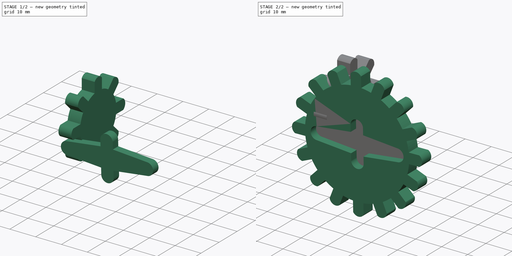
[diagram: build sequence overview — one tinted view per stage of 2, left to right]
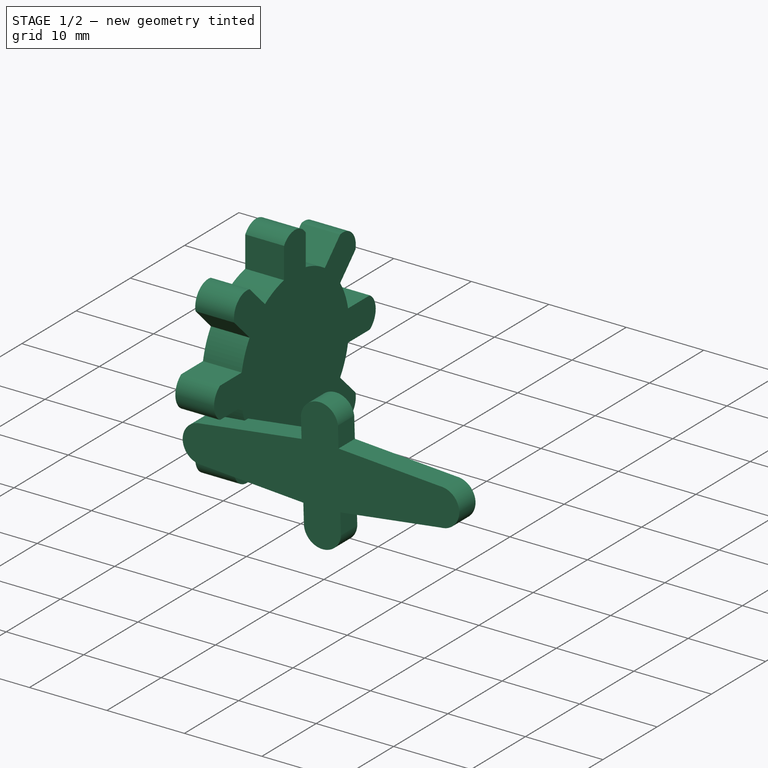
[diagram: stage 1 of 2 — iso view after this stage's code; geometry added in this stage tinted green]
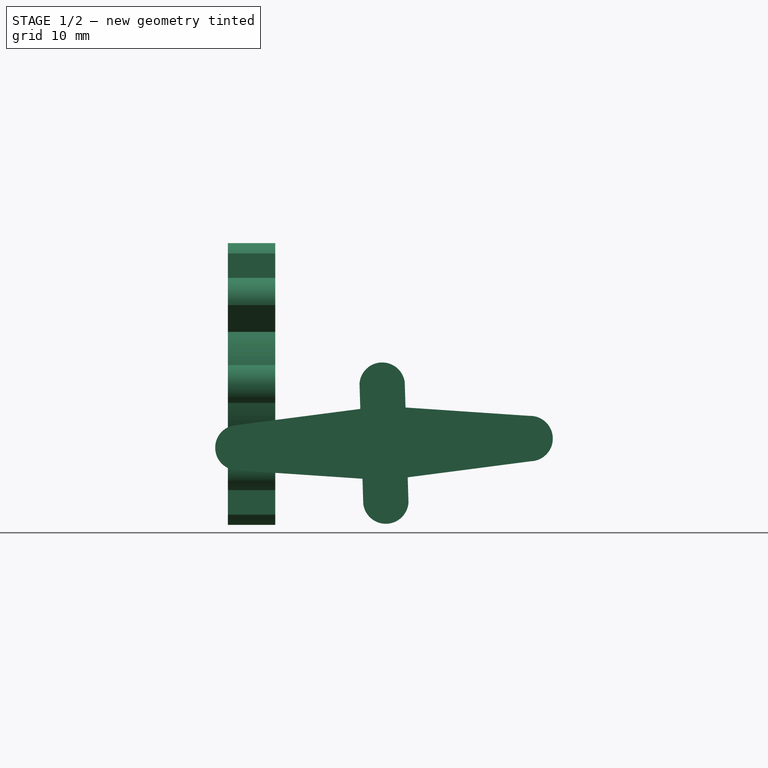
[diagram: stage 1 of 2 — front view after this stage's code; geometry added in this stage tinted green]
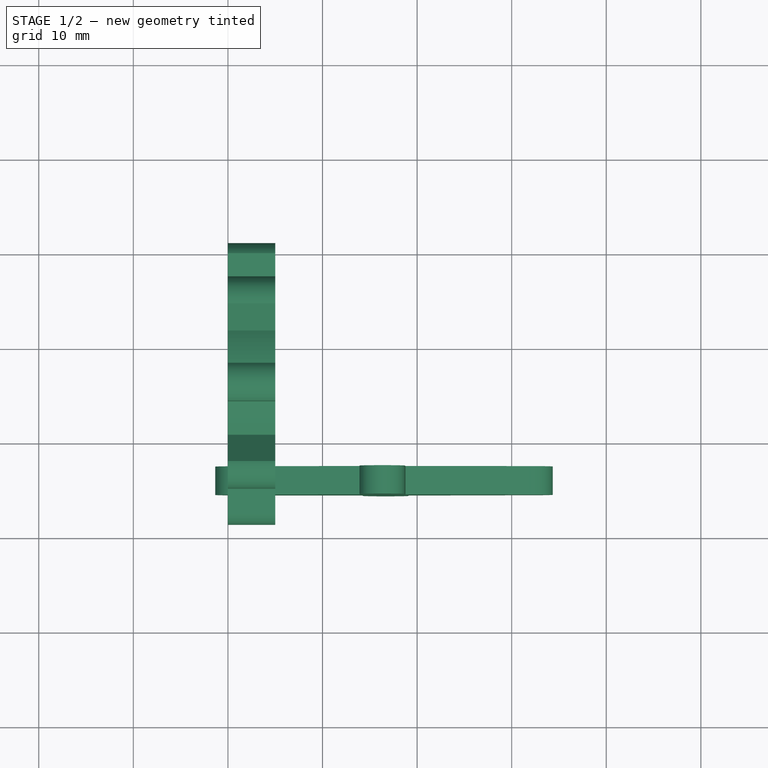
[diagram: stage 1 of 2 — top view after this stage's code; geometry added in this stage tinted green]
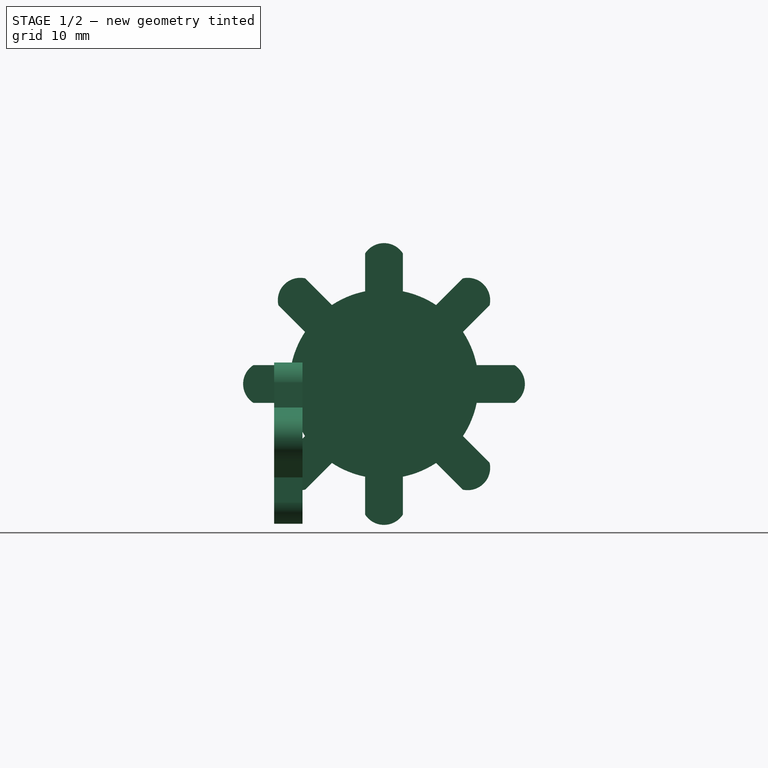
[diagram: stage 1 of 2 — right view after this stage's code; geometry added in this stage tinted green]
FCSTD DOCUMENT  (FreeCAD 0.20R29410 (Git))
Label: gears
License: Creative Commons Attribution-ShareAlike
LicenseURL: http://creativecommons.org/licenses/by-sa/4.0/
objects: Part::Feature×3, Sketcher::SketchObject×3, Part::Extrusion×3, App::Part×1, Part::Cut×1
note: 10 computed .brp shape members not serialized (recipe doc carries the construction recipe); baked Part::Feature solids carry a one-line shape summary decoded from their .brp

FEATURE [Sketcher::SketchObject] Sketch001
  FullyConstrained = false
  MapMode = 5
  Placement = pos=(16.5,34.45,-6.25) rot=(-0.999757,-0.01559,-0.01559;1.57104rad)
  Support = -> [Part__Feature002]
  sketch-geometry (16):
    g0: LineSegment StartX=-2.39133 StartY=6.36221 StartZ=0 EndX=-2.39133 EndY=3.69187 EndZ=0
    g1: LineSegment StartX=-2.39133 StartY=3.69187 StartZ=0 EndX=-15.4752 EndY=2.39873 EndZ=0
    g2: ArcOfCircle CenterX=0 CenterY=6.1269 CenterZ=0 NormalX=0 NormalY=0 NormalZ=1 AngleXU=0 Radius=2.40288 StartAngle=1.5708 EndAngle=3.04351
    g3: ArcOfCircle CenterX=-15.4551 CenterY=0 CenterZ=0 NormalX=0 NormalY=0 NormalZ=1 AngleXU=0 Radius=2.39881 StartAngle=1.57915 EndAngle=3.14159
    g4: LineSegment StartX=2.39133 StartY=6.36221 StartZ=0 EndX=2.39133 EndY=3.69187 EndZ=0
    g5: LineSegment StartX=2.39133 StartY=3.69187 StartZ=0 EndX=15.4752 EndY=2.39873 EndZ=0
    g6: ArcOfCircle CenterX=0 CenterY=6.1269 CenterZ=0 NormalX=0 NormalY=0 NormalZ=1 AngleXU=0 Radius=2.40288 StartAngle=0.0980847 EndAngle=1.5708
    g7: ArcOfCircle CenterX=15.4551 CenterY=0 CenterZ=0 NormalX=0 NormalY=0 NormalZ=1 AngleXU=0 Radius=2.39881 StartAngle=1e-16 EndAngle=1.56244
    g8: LineSegment StartX=-2.39133 StartY=-6.36221 StartZ=0 EndX=-2.39133 EndY=-3.69187 EndZ=0
    g9: LineSegment StartX=-2.39133 StartY=-3.69187 StartZ=0 EndX=-15.4752 EndY=-2.39873 EndZ=0
    g10: ArcOfCircle CenterX=0 CenterY=-6.1269 CenterZ=0 NormalX=0 NormalY=0 NormalZ=1 AngleXU=0 Radius=2.40288 StartAngle=3.23968 EndAngle=4.71239
    g11: ArcOfCircle CenterX=-15.4551 CenterY=0 CenterZ=0 NormalX=0 NormalY=0 NormalZ=1 AngleXU=0 Radius=2.39881 StartAngle=3.14159 EndAngle=4.70403
    g12: LineSegment StartX=2.39133 StartY=-6.36221 StartZ=0 EndX=2.39133 EndY=-3.69187 EndZ=0
    g13: LineSegment StartX=2.39133 StartY=-3.69187 StartZ=0 EndX=15.4752 EndY=-2.39873 EndZ=0
    g14: ArcOfCircle CenterX=0 CenterY=-6.1269 CenterZ=0 NormalX=0 NormalY=0 NormalZ=1 AngleXU=0 Radius=2.40288 StartAngle=4.71239 EndAngle=6.1851
    g15: ArcOfCircle CenterX=15.4551 CenterY=0 CenterZ=0 NormalX=0 NormalY=0 NormalZ=1 AngleXU=0 Radius=2.39881 StartAngle=4.72075 EndAngle=6.28319
  constraints (20):
    c: Vertical(g0)
    c: Coincident(g0,g1)
    c: PointOnObject(g2,g-2)
    c: Coincident(g2,g0)
    c: PointOnObject(g2,g-2)
    c: PointOnObject(g3,g-1)
    c: Coincident(g3,g1)
    c: PointOnObject(g3,g-1)
    c: Vertical(g4)
    c: Coincident(g4,g5)
    c: Coincident(g6,g4)
    c: Coincident(g7,g5)
    c: Vertical(g8)
    c: Coincident(g8,g9)
    c: Coincident(g10,g8)
    c: Coincident(g11,g9)
    c: Vertical(g12)
    c: Coincident(g12,g13)
    c: Coincident(g14,g12)
    c: Coincident(g15,g13)
FEATURE [Part::Extrusion] Extrude001  label="Servo Horn Gap"
  Base = -> Sketch001
  Dir = (0,1,0)
  DirMode = 2
  FaceMakerClass = Part::FaceMakerBullseye
  LengthFwd = 3
  LengthRev = 0
  Solid = true
  Symmetric = false
FEATURE [Sketcher::SketchObject] Sketch003
  FullyConstrained = false
  Placement = pos=(0,0,0) rot=(0.57735,0.57735,0.57735;2.0944rad)
  sketch-geometry (41):
    g0: ArcOfCircle CenterX=46.0709 CenterY=0 CenterZ=0 NormalX=0 NormalY=0 NormalZ=1 AngleXU=0 Radius=10 StartAngle=2.55755 EndAngle=2.94023
    g1: LineSegment StartX=46.0709 StartY=0 StartZ=0 EndX=46.0709 EndY=17.5553 EndZ=0
    g2: LineSegment StartX=46.0709 StartY=0 StartZ=0 EndX=63.8362 EndY=0 EndZ=0
    g3: LineSegment StartX=46.0709 StartY=0 StartZ=0 EndX=46.0709 EndY=-12.8276 EndZ=0
    g4: LineSegment StartX=46.0709 StartY=0 StartZ=0 EndX=32.1152 EndY=0 EndZ=0
    g5: LineSegment StartX=44.0709 StartY=9.79796 StartZ=0 EndX=44.0709 EndY=13.798 EndZ=0
    g6: LineSegment StartX=48.0709 StartY=9.79796 StartZ=0 EndX=48.0709 EndY=13.798 EndZ=0
    g7: ArcOfCircle CenterX=46.0709 CenterY=12.5184 CenterZ=0 NormalX=0 NormalY=0 NormalZ=1 AngleXU=0 Radius=2.37432 StartAngle=0.569172 EndAngle=2.57242
    g8: GeomPoint X=46.0709 Y=14.8927 Z=0
    g9: LineSegment StartX=46.0709 StartY=0 StartZ=0 EndX=58.8048 EndY=-12.734 EndZ=0
    g10: LineSegment StartX=46.0709 StartY=0 StartZ=0 EndX=61.7698 EndY=15.6989 EndZ=0
    g11: LineSegment StartX=51.5849 StartY=8.34242 StartZ=0 EndX=54.4133 EndY=11.1708 EndZ=0
    g12: LineSegment StartX=54.4133 StartY=5.51399 StartZ=0 EndX=57.2417 EndY=8.34242 EndZ=0
    g13: ArcOfCircle CenterX=54.9227 CenterY=8.85181 CenterZ=0 NormalX=0 NormalY=0 NormalZ=1 AngleXU=0 Radius=2.37432 StartAngle=6.06696 EndAngle=8.07021
    g14: GeomPoint X=56.6016 Y=10.5307 Z=0
    g15: LineSegment StartX=54.4133 StartY=-5.51399 StartZ=0 EndX=57.2417 EndY=-8.34242 EndZ=0
    g16: ArcOfCircle CenterX=54.9227 CenterY=-8.85181 CenterZ=0 NormalX=0 NormalY=0 NormalZ=1 AngleXU=0 Radius=2.37432 StartAngle=4.49616 EndAngle=6.49941
    g17: LineSegment StartX=51.5849 StartY=-8.34242 StartZ=0 EndX=54.4133 EndY=-11.1708 EndZ=0
    g18: LineSegment StartX=48.0709 StartY=-9.79796 StartZ=0 EndX=48.0709 EndY=-13.798 EndZ=0
    g19: ArcOfCircle CenterX=46.0709 CenterY=-12.5184 CenterZ=0 NormalX=0 NormalY=0 NormalZ=1 AngleXU=0 Radius=2.37432 StartAngle=3.71076 EndAngle=5.71401
    g20: LineSegment StartX=44.0709 StartY=-9.79796 StartZ=0 EndX=44.0709 EndY=-13.798 EndZ=0
    g21: LineSegment StartX=55.8689 StartY=2 StartZ=0 EndX=59.8689 EndY=2 EndZ=0
    g22: ArcOfCircle CenterX=58.5892 CenterY=0 CenterZ=0 NormalX=0 NormalY=0 NormalZ=1 AngleXU=0 Radius=2.37432 StartAngle=5.28156 EndAngle=7.28481
    g23: LineSegment StartX=55.8689 StartY=-2 StartZ=0 EndX=59.8689 EndY=-2 EndZ=0
    g24: LineSegment StartX=40.5569 StartY=8.34242 StartZ=0 EndX=37.7285 EndY=11.1708 EndZ=0
    g25: LineSegment StartX=37.7285 StartY=5.51399 StartZ=0 EndX=34.9 EndY=8.34242 EndZ=0
    g26: ArcOfCircle CenterX=37.2191 CenterY=8.85181 CenterZ=0 NormalX=0 NormalY=0 NormalZ=1 AngleXU=0 Radius=2.37432 StartAngle=1.35457 EndAngle=3.35782
    g27: GeomPoint X=35.5402 Y=10.5307 Z=0
    g28: LineSegment StartX=37.7285 StartY=-5.51399 StartZ=0 EndX=34.9 EndY=-8.34242 EndZ=0
    g29: ArcOfCircle CenterX=37.2191 CenterY=-8.85181 CenterZ=0 NormalX=0 NormalY=0 NormalZ=1 AngleXU=0 Radius=2.37432 StartAngle=2.92537 EndAngle=4.92861
    g30: LineSegment StartX=40.5569 StartY=-8.34242 StartZ=0 EndX=37.7285 EndY=-11.1708 EndZ=0
    g31: LineSegment StartX=36.2729 StartY=2 StartZ=0 EndX=32.2729 EndY=2 EndZ=0
    g32: ArcOfCircle CenterX=33.5525 CenterY=0 CenterZ=0 NormalX=0 NormalY=0 NormalZ=1 AngleXU=0 Radius=2.37432 StartAngle=2.13997 EndAngle=4.14322
    g33: LineSegment StartX=36.2729 StartY=-2 StartZ=0 EndX=32.2729 EndY=-2 EndZ=0
    g34: ArcOfCircle CenterX=46.0709 CenterY=0 CenterZ=0 NormalX=0 NormalY=0 NormalZ=1 AngleXU=0 Radius=10 StartAngle=3.34295 EndAngle=3.72563
    g35: ArcOfCircle CenterX=46.0709 CenterY=0 CenterZ=0 NormalX=0 NormalY=0 NormalZ=1 AngleXU=0 Radius=10 StartAngle=4.12835 EndAngle=4.51103
    g36: ArcOfCircle CenterX=46.0709 CenterY=0 CenterZ=0 NormalX=0 NormalY=0 NormalZ=1 AngleXU=0 Radius=10 StartAngle=4.91375 EndAngle=5.29643
    g37: ArcOfCircle CenterX=46.0709 CenterY=0 CenterZ=0 NormalX=0 NormalY=0 NormalZ=1 AngleXU=0 Radius=10 StartAngle=5.69915 EndAngle=6.08183
    g38: ArcOfCircle CenterX=46.0709 CenterY=0 CenterZ=0 NormalX=0 NormalY=0 NormalZ=1 AngleXU=0 Radius=10 StartAngle=0.201358 EndAngle=0.58404
    g39: ArcOfCircle CenterX=46.0709 CenterY=0 CenterZ=0 NormalX=0 NormalY=0 NormalZ=1 AngleXU=0 Radius=10 StartAngle=0.986756 EndAngle=1.36944
    g40: ArcOfCircle CenterX=46.0709 CenterY=0 CenterZ=0 NormalX=0 NormalY=0 NormalZ=1 AngleXU=0 Radius=10 StartAngle=1.77215 EndAngle=2.15484
  constraints (96):
    c: PointOnObject(g0,g-1)
    c: Diameter(g0) = 20
    c: Coincident(g1,g0)
    c: Vertical(g1)
    c: Coincident(g2,g0)
    c: PointOnObject(g2,g-1)
    c: Coincident(g3,g0)
    c: Vertical(g3)
    c: Coincident(g4,g0)
    c: PointOnObject(g4,g-1)
    c: PointOnObject(g5,g0)
    c: Parallel(g5,g1)
    c: Distance(g5,g1) = 2
    c: Distance(g5) = 4
    c: Distance(g6) = 4
    c: PointOnObject(g7,g1)
    c: Coincident(g7,g5)
    c: Coincident(g7,g6)
    c: PointOnObject(g8,g1)
    c: PointOnObject(g8,g7)
    c: Distance(g8,g5) = 2.28
    c: Parallel(g6,g1)
    c: Distance(g6,g1) = 2
    c: Coincident(g9,g0)
    c: Angle(g9,g2) = 0.785398
    c: Coincident(g10,g0)
    c: Angle(g10,g1) = 0.785398
    c: PointOnObject(g11,g0)
    c: Parallel(g10,g11)
    c: Distance(g11,g10) = 2
    c: Distance(g11) = 4
    c: Distance(g12) = 4
    c: PointOnObject(g12,g0)
    c: PointOnObject(g13,g10)
    c: Coincident(g13,g12)
    c: Coincident(g13,g11)
    c: Distance(g12,g10) = 2
    c: PointOnObject(g14,g10)
    c: PointOnObject(g14,g13)
    c: Distance(g11,g14) = 2.28
    c: Distance(g20) = 4
    c: Distance(g18) = 4
    c: Coincident(g19,g20)
    c: Coincident(g19,g18)
    c: Distance(g17) = 4
    c: Distance(g15) = 4
    c: Coincident(g16,g15)
    c: Coincident(g16,g17)
    c: Distance(g23) = 4
    c: Distance(g21) = 4
    c: Coincident(g22,g23)
    c: Coincident(g22,g21)
    c: Distance(g24) = 4
    c: Distance(g25) = 4
    c: Coincident(g26,g25)
    c: Coincident(g26,g24)
    c: PointOnObject(g27,g26)
    c: Distance(g24,g27) = 2.28
    c: Distance(g30) = 4
    c: Distance(g28) = 4
    c: Coincident(g29,g28)
    c: Coincident(g29,g30)
    c: Distance(g33) = 4
    c: Distance(g31) = 4
    c: Coincident(g32,g33)
    c: Coincident(g32,g31)
    c: Coincident(g40,g24)
    c: Coincident(g0,g25)
    c: Equal(g0,g34)
    c: PointOnObject(g0,g31)
    c: Coincident(g0,g34)
    c: PointOnObject(g34,g33)
    c: Equal(g34,g35)
    c: PointOnObject(g34,g28)
    c: PointOnObject(g35,g30)
    c: Coincident(g34,g35)
    c: Equal(g35,g36)
    c: PointOnObject(g35,g20)
    c: Coincident(g35,g36)
    c: PointOnObject(g36,g18)
    c: Equal(g36,g37)
    c: PointOnObject(g36,g17)
    c: Coincident(g36,g37)
    c: PointOnObject(g37,g15)
    c: Equal(g37,g38)
    c: PointOnObject(g37,g23)
    c: Coincident(g37,g38)
    c: PointOnObject(g38,g21)
    c: Equal(g38,g39)
    c: PointOnObject(g38,g12)
    c: Coincident(g38,g39)
    c: PointOnObject(g39,g11)
    c: Equal(g39,g40)
    c: PointOnObject(g39,g6)
    c: Coincident(g39,g40)
    c: PointOnObject(g40,g5)
FEATURE [Part::Extrusion] Extrude002  label="Weapon Gear"
  Base = -> Sketch003
  Dir = (1,0,0)
  DirMode = 2
  FaceMakerClass = Part::FaceMakerBullseye
  LengthFwd = 5
  LengthRev = 0
  Solid = true
  Symmetric = false
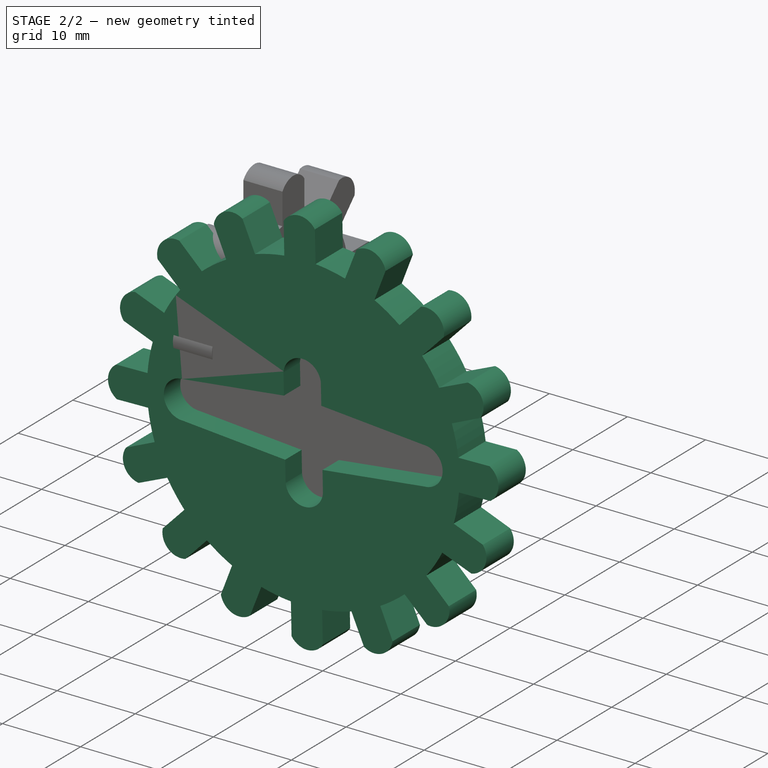
[diagram: stage 2 of 2 — iso view after this stage's code; geometry added in this stage tinted green]
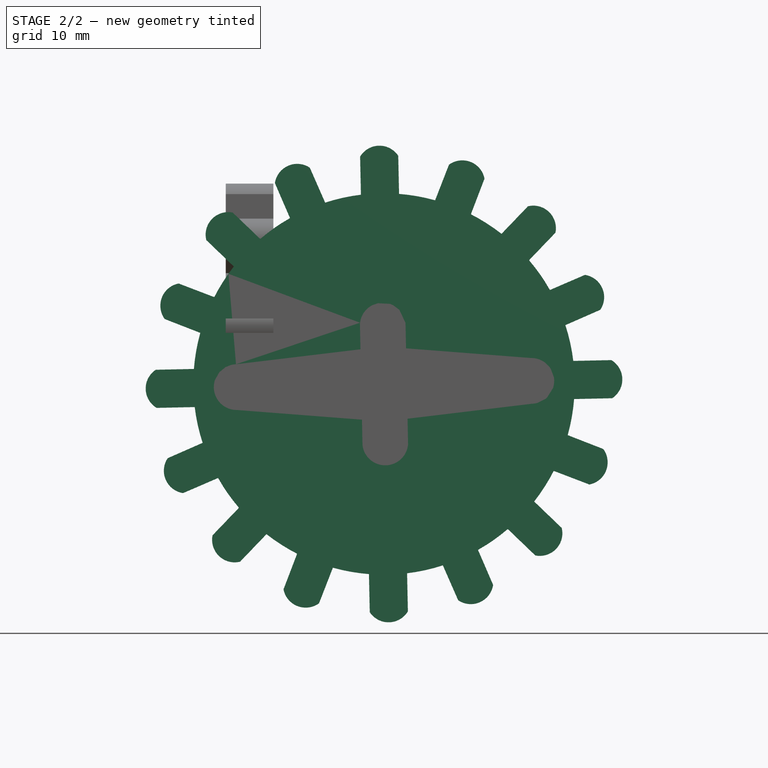
[diagram: stage 2 of 2 — front view after this stage's code; geometry added in this stage tinted green]
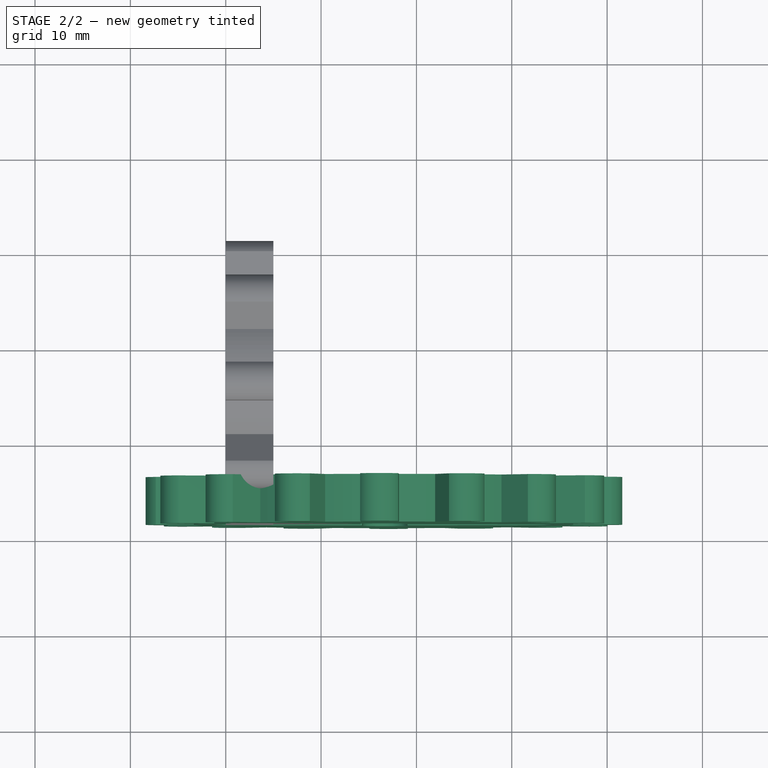
[diagram: stage 2 of 2 — top view after this stage's code; geometry added in this stage tinted green]
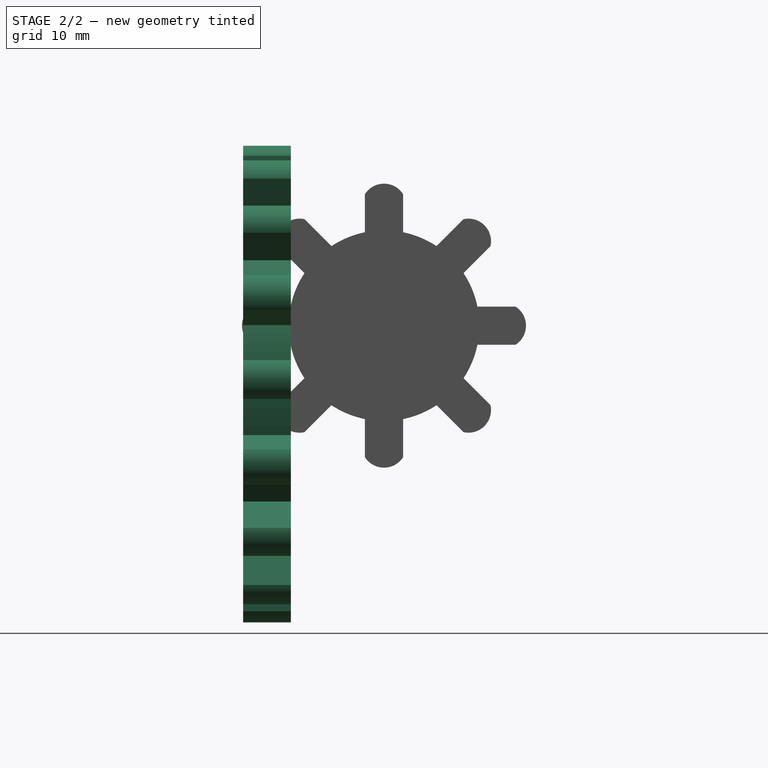
[diagram: stage 2 of 2 — right view after this stage's code; geometry added in this stage tinted green]
FEATURE [Part::Feature] Part__Feature  label="MG90servo_body"
  shape: bbox 32.05 x 28.5 x 13.53 mm, 90 faces (baked)
FEATURE [Part::Feature] Part__Feature001  label="MG90servo_shaft"
  Placement = pos=(16.5,28.5,-6.25) rot=(0,-1,0;0.664889rad)
  shape: bbox 5 x 4.3 x 5 mm, 110 faces (baked)
FEATURE [Part::Feature] Part__Feature002  label="MG90servo_gear"
  Placement = pos=(16.5,34.45,-6.25) rot=(0.999878,0,0.015592;3.14159rad)
  shape: bbox 34.99 x 4.85 x 16.29 mm, 61 faces (baked)
FEATURE [App::Part] MG90servo_assembly
  Group = -> [Part__Feature,Part__Feature001,Part__Feature002]
  Origin = -> Origin
FEATURE [Sketcher::SketchObject] Sketch
  FullyConstrained = false
  MapMode = 5
  Placement = pos=(16.5,34.45,-6.25) rot=(-0.999757,-0.01559,-0.01559;1.57104rad)
  Support = -> [Part__Feature002]
  sketch-geometry (81):
    g0: ArcOfCircle CenterX=0 CenterY=0 CenterZ=0 NormalX=0 NormalY=0 NormalZ=1 AngleXU=0 Radius=20 StartAngle=4.41986 EndAngle=4.61222
    g1: LineSegment StartX=0 StartY=0 StartZ=0 EndX=0 EndY=25 EndZ=0
    g2: LineSegment StartX=0 StartY=0 StartZ=0 EndX=25 EndY=0 EndZ=0
    g3: LineSegment StartX=0 StartY=0 StartZ=0 EndX=0 EndY=-25 EndZ=0
    g4: LineSegment StartX=0 StartY=0 StartZ=0 EndX=-25 EndY=0 EndZ=0
    g5: LineSegment StartX=0 StartY=0 StartZ=0 EndX=17.6777 EndY=17.6777 EndZ=0
    g6: LineSegment StartX=0 StartY=0 StartZ=0 EndX=9.56709 EndY=23.097 EndZ=0
    g7: LineSegment StartX=0 StartY=0 StartZ=0 EndX=-17.6777 EndY=17.6777 EndZ=0
    g8: LineSegment StartX=0 StartY=0 StartZ=0 EndX=-9.56709 EndY=23.097 EndZ=0
    g9: LineSegment StartX=0 StartY=0 StartZ=0 EndX=-9.5662 EndY=-23.0974 EndZ=0
    g10: LineSegment StartX=0 StartY=0 StartZ=0 EndX=-17.677 EndY=-17.6783 EndZ=0
    g11: LineSegment StartX=0 StartY=0 StartZ=0 EndX=17.6777 EndY=-17.6777 EndZ=0
    g12: LineSegment StartX=0 StartY=0 StartZ=0 EndX=9.56709 EndY=-23.097 EndZ=0
    g13: LineSegment StartX=0 StartY=0 StartZ=0 EndX=23.097 EndY=-9.56709 EndZ=0
    g14: LineSegment StartX=0 StartY=0 StartZ=0 EndX=23.097 EndY=9.56709 EndZ=0
    g15: LineSegment StartX=0 StartY=0 StartZ=0 EndX=-23.097 EndY=9.56709 EndZ=0
    g16: LineSegment StartX=0 StartY=0 StartZ=0 EndX=-23.0966 EndY=-9.56797 EndZ=0
    g17: LineSegment StartX=-2 StartY=19.8997 StartZ=0 EndX=-2 EndY=23.8997 EndZ=0
    g18: ArcOfCircle CenterX=0 CenterY=22.6321 CenterZ=0 NormalX=0 NormalY=0 NormalZ=1 AngleXU=0 Radius=2.36789 StartAngle=0.564917 EndAngle=2.57668
    g19: LineSegment StartX=2 StartY=19.8997 StartZ=0 EndX=2 EndY=23.8997 EndZ=0
    g20: LineSegment StartX=12.657 StartY=15.4855 StartZ=0 EndX=15.4855 EndY=18.3139 EndZ=0
    g21: ArcOfCircle CenterX=16.0033 CenterY=16.0033 CenterZ=0 NormalX=0 NormalY=0 NormalZ=1 AngleXU=0 Radius=2.36789 StartAngle=6.0627 EndAngle=8.07446
    g22: LineSegment StartX=15.4855 StartY=12.657 StartZ=0 EndX=18.3139 EndY=15.4855 EndZ=0
    g23: LineSegment StartX=0 StartY=0 StartZ=0 EndX=23.097 EndY=-9.56709 EndZ=0
    g24: LineSegment StartX=19.8997 StartY=-2 StartZ=0 EndX=23.8997 EndY=-2 EndZ=0
    g25: ArcOfCircle CenterX=22.6321 CenterY=3.6e-15 CenterZ=0 NormalX=0 NormalY=0 NormalZ=1 AngleXU=0 Radius=2.36789 StartAngle=5.27731 EndAngle=7.28906
    g26: LineSegment StartX=19.8997 StartY=2 StartZ=0 EndX=23.8997 EndY=2 EndZ=0
    g27: LineSegment StartX=15.4855 StartY=-12.657 StartZ=0 EndX=18.3139 EndY=-15.4855 EndZ=0
    g28: ArcOfCircle CenterX=16.0033 CenterY=-16.0033 CenterZ=0 NormalX=0 NormalY=0 NormalZ=1 AngleXU=0 Radius=2.36789 StartAngle=4.49191 EndAngle=6.50367
    g29: LineSegment StartX=12.657 StartY=-15.4855 StartZ=0 EndX=15.4855 EndY=-18.3139 EndZ=0
    g30: LineSegment StartX=2 StartY=-19.8997 StartZ=0 EndX=2 EndY=-23.8997 EndZ=0
    g31: ArcOfCircle CenterX=1.12305e-10 CenterY=-22.6321 CenterZ=0 NormalX=0 NormalY=0 NormalZ=1 AngleXU=0 Radius=2.36789 StartAngle=3.70651 EndAngle=5.71827
    g32: LineSegment StartX=-2 StartY=-19.8997 StartZ=0 EndX=-2 EndY=-23.8997 EndZ=0
    g33: LineSegment StartX=-15.4856 StartY=-12.6569 StartZ=0 EndX=-18.314 EndY=-15.4853 EndZ=0
    g34: ArcOfCircle CenterX=-16.0034 CenterY=-16.0032 CenterZ=0 NormalX=0 NormalY=0 NormalZ=1 AngleXU=0 Radius=2.36789 StartAngle=2.9211 EndAngle=4.93286
    g35: LineSegment StartX=-12.6572 StartY=-15.4854 StartZ=0 EndX=-15.4856 EndY=-18.3138 EndZ=0
    g36: LineSegment StartX=-19.8997 StartY=2 StartZ=0 EndX=-23.8997 EndY=2 EndZ=0
    g37: ArcOfCircle CenterX=-22.6321 CenterY=-1.12298e-10 CenterZ=0 NormalX=0 NormalY=0 NormalZ=1 AngleXU=0 Radius=2.36789 StartAngle=2.13571 EndAngle=4.14747
    g38: LineSegment StartX=-19.8997 StartY=-2 StartZ=0 EndX=-23.8997 EndY=-2 EndZ=0
    g39: LineSegment StartX=-12.657 StartY=15.4855 StartZ=0 EndX=-15.4855 EndY=18.3139 EndZ=0
    g40: ArcOfCircle CenterX=-16.0033 CenterY=16.0033 CenterZ=0 NormalX=0 NormalY=0 NormalZ=1 AngleXU=0 Radius=2.36789 StartAngle=1.35032 EndAngle=3.36207
    g41: LineSegment StartX=-15.4855 StartY=12.657 StartZ=0 EndX=-18.3139 EndY=15.4855 EndZ=0
    g42: LineSegment StartX=5.76755 StartY=19.1503 StartZ=0 EndX=7.29828 EndY=22.8459 EndZ=0
    g43: LineSegment StartX=9.48739 StartY=17.6065 StartZ=0 EndX=10.9944 EndY=21.3118 EndZ=0
    g44: ArcOfCircle CenterX=8.66093 CenterY=20.9093 CenterZ=0 NormalX=0 NormalY=0 NormalZ=1 AngleXU=0 Radius=2.36789 StartAngle=0.170787 EndAngle=2.18398
    g45: LineSegment StartX=17.6065 StartY=9.48739 StartZ=0 EndX=21.3118 EndY=10.9944 EndZ=0
    g46: ArcOfCircle CenterX=20.9093 CenterY=8.66093 CenterZ=0 NormalX=0 NormalY=0 NormalZ=1 AngleXU=0 Radius=2.36789 StartAngle=5.67001 EndAngle=7.68319
    g47: LineSegment StartX=19.1503 StartY=5.76755 StartZ=0 EndX=22.8459 EndY=7.29828 EndZ=0
    g48: LineSegment StartX=19.1503 StartY=-5.76755 StartZ=0 EndX=22.8459 EndY=-7.29828 EndZ=0
    g49: ArcOfCircle CenterX=20.9093 CenterY=-8.66093 CenterZ=0 NormalX=0 NormalY=0 NormalZ=1 AngleXU=0 Radius=2.36789 StartAngle=4.88318 EndAngle=6.89637
    g50: LineSegment StartX=17.6065 StartY=-9.48739 StartZ=0 EndX=21.3118 EndY=-10.9944 EndZ=0
    g51: LineSegment StartX=5.76755 StartY=-19.1503 StartZ=0 EndX=7.29828 EndY=-22.8459 EndZ=0
    g52: LineSegment StartX=9.48739 StartY=-17.6065 StartZ=0 EndX=10.9944 EndY=-21.3118 EndZ=0
    g53: ArcOfCircle CenterX=8.66093 CenterY=-20.9093 CenterZ=0 NormalX=0 NormalY=0 NormalZ=1 AngleXU=0 Radius=2.36789 StartAngle=4.09921 EndAngle=6.1124
    g54: LineSegment StartX=-9.48739 StartY=-17.6065 StartZ=0 EndX=-10.9944 EndY=-21.3118 EndZ=0
    g55: LineSegment StartX=-5.76755 StartY=-19.1503 StartZ=0 EndX=-7.29828 EndY=-22.8459 EndZ=0
    g56: ArcOfCircle CenterX=-8.66093 CenterY=-20.9093 CenterZ=0 NormalX=0 NormalY=0 NormalZ=1 AngleXU=0 Radius=2.36789 StartAngle=3.31238 EndAngle=5.32557
    g57: LineSegment StartX=-19.1499 StartY=-5.76902 StartZ=0 EndX=-22.8453 EndY=-7.30003 EndZ=0
    g58: ArcOfCircle CenterX=-20.9087 CenterY=-8.66254 CenterZ=0 NormalX=0 NormalY=0 NormalZ=1 AngleXU=0 Radius=2.36789 StartAngle=2.52849 EndAngle=4.54168
    g59: LineSegment StartX=-17.6058 StartY=-9.48874 StartZ=0 EndX=-21.3109 EndY=-10.996 EndZ=0
    g60: LineSegment StartX=-17.6058 StartY=9.48874 StartZ=0 EndX=-21.3109 EndY=10.996 EndZ=0
    g61: ArcOfCircle CenterX=-20.9087 CenterY=8.66254 CenterZ=0 NormalX=0 NormalY=0 NormalZ=1 AngleXU=0 Radius=2.36789 StartAngle=1.74151 EndAngle=3.7547
    g62: LineSegment StartX=-19.1499 StartY=5.76902 StartZ=0 EndX=-22.8453 EndY=7.30003 EndZ=0
    g63: LineSegment StartX=-5.76902 StartY=19.1499 StartZ=0 EndX=-7.30003 EndY=22.8453 EndZ=0
    g64: ArcOfCircle CenterX=-8.66254 CenterY=20.9087 CenterZ=0 NormalX=0 NormalY=0 NormalZ=1 AngleXU=0 Radius=2.36789 StartAngle=0.957693 EndAngle=2.97088
    g65: LineSegment StartX=-9.48874 StartY=17.6058 StartZ=0 EndX=-10.996 EndY=21.3109 EndZ=0
    g66: ArcOfCircle CenterX=0 CenterY=0 CenterZ=0 NormalX=0 NormalY=0 NormalZ=1 AngleXU=0 Radius=20 StartAngle=4.02715 EndAngle=4.21814
    g67: ArcOfCircle CenterX=0 CenterY=0 CenterZ=0 NormalX=0 NormalY=0 NormalZ=1 AngleXU=0 Radius=20 StartAngle=3.63592 EndAngle=3.82682
    g68: ArcOfCircle CenterX=0 CenterY=0 CenterZ=0 NormalX=0 NormalY=0 NormalZ=1 AngleXU=0 Radius=20 StartAngle=3.24176 EndAngle=3.4342
    g69: ArcOfCircle CenterX=0 CenterY=0 CenterZ=0 NormalX=0 NormalY=0 NormalZ=1 AngleXU=0 Radius=20 StartAngle=2.84898 EndAngle=3.04143
    g70: ArcOfCircle CenterX=0 CenterY=0 CenterZ=0 NormalX=0 NormalY=0 NormalZ=1 AngleXU=0 Radius=20 StartAngle=2.45636 EndAngle=2.64727
    g71: ArcOfCircle CenterX=0 CenterY=0 CenterZ=0 NormalX=0 NormalY=0 NormalZ=1 AngleXU=0 Radius=20 StartAngle=2.06512 EndAngle=2.25603
    g72: ArcOfCircle CenterX=0 CenterY=0 CenterZ=0 NormalX=0 NormalY=0 NormalZ=1 AngleXU=0 Radius=20 StartAngle=1.67096 EndAngle=1.8634
    g73: ArcOfCircle CenterX=0 CenterY=0 CenterZ=0 NormalX=0 NormalY=0 NormalZ=1 AngleXU=0 Radius=20 StartAngle=1.27826 EndAngle=1.47063
    g74: ArcOfCircle CenterX=0 CenterY=0 CenterZ=0 NormalX=0 NormalY=0 NormalZ=1 AngleXU=0 Radius=20 StartAngle=0.885566 EndAngle=1.07655
    g75: ArcOfCircle CenterX=0 CenterY=0 CenterZ=0 NormalX=0 NormalY=0 NormalZ=1 AngleXU=0 Radius=20 StartAngle=0.494248 EndAngle=0.685231
    g76: ArcOfCircle CenterX=0 CenterY=0 CenterZ=0 NormalX=0 NormalY=0 NormalZ=1 AngleXU=0 Radius=20 StartAngle=0.100167 EndAngle=0.292532
    g77: ArcOfCircle CenterX=0 CenterY=0 CenterZ=0 NormalX=0 NormalY=0 NormalZ=1 AngleXU=0 Radius=20 StartAngle=5.99065 EndAngle=6.18302
    g78: ArcOfCircle CenterX=0 CenterY=0 CenterZ=0 NormalX=0 NormalY=0 NormalZ=1 AngleXU=0 Radius=20 StartAngle=5.59795 EndAngle=5.78894
    g79: ArcOfCircle CenterX=0 CenterY=0 CenterZ=0 NormalX=0 NormalY=0 NormalZ=1 AngleXU=0 Radius=20 StartAngle=5.20664 EndAngle=5.39762
    g80: ArcOfCircle CenterX=0 CenterY=0 CenterZ=0 NormalX=0 NormalY=0 NormalZ=1 AngleXU=0 Radius=20 StartAngle=4.81256 EndAngle=5.00492
  constraints (184):
    c: Coincident(g0,g-1)
    c: Diameter(g0) = 40
    c: Coincident(g1,g0)
    c: PointOnObject(g1,g-2)
    c: Distance(g1) = 25
    c: Coincident(g2,g0)
    c: PointOnObject(g2,g-1)
    c: Coincident(g3,g0)
    c: PointOnObject(g3,g-2)
    c: Coincident(g4,g0)
    c: PointOnObject(g4,g-1)
    c: Equal(g4,g2)
    c: Equal(g2,g3)
    c: Equal(g3,g1)
    c: Coincident(g5,g0)
    c: Angle(g5,g1) = 0.785398
    c: Coincident(g6,g0)
    c: Angle(g5,g6) = 0.392699
    c: Angle(g7,g8) = -0.392699
    c: Angle(g10,g9) = 0.392699
    c: Angle(g11,g12) = -0.392699
    c: Equal(g1,g6)
    c: Equal(g6,g5)
    c: Equal(g5,g14)
    c: Equal(g14,g13)
    c: Equal(g13,g11)
    c: Equal(g11,g12)
    c: Equal(g12,g9)
    c: Equal(g9,g10)
    c: Equal(g10,g16)
    c: Coincident(g0,g16)
    c: Coincident(g9,g0)
    c: Coincident(g12,g0)
    c: Coincident(g14,g0)
    c: Coincident(g13,g0)
    c: Coincident(g11,g0)
    c: Coincident(g10,g0)
    c: Equal(g16,g15)
    c: Coincident(g15,g0)
    c: Equal(g15,g7)
    c: Coincident(g7,g0)
    c: Equal(g7,g8)
    c: Coincident(g8,g0)
    c: Vertical(g17)
    c: PointOnObject(g18,g1)
    c: Coincident(g18,g17)
    c: Distance(g18,g17) = 2
    c: Vertical(g19)
    c: Coincident(g19,g18)
    c: DistanceY(g17,g17) = 4
    c: Equal(g19,g17)
    c: Angle(g14,g5) = 0.392699
    c: Angle(g13,g2) = 0.392699
    c: Angle(g16,g10) = 0.392699
    c: Angle(g15,g4) = 0.392699
    c: PointOnObject(g1,g18)
    c: Coincident(g21,g22)
    c: Distance(g21,g22) = 2
    c: Coincident(g20,g21)
    c: Equal(g20,g22)
    c: Coincident(g25,g26)
    c: Distance(g25,g26) = 2
    c: Coincident(g24,g25)
    c: Equal(g24,g26)
    c: Coincident(g28,g29)
    c: Distance(g28,g29) = 2
    c: Coincident(g27,g28)
    c: Equal(g27,g29)
    c: Angle(g11,g13) = 0.392699
    c: Coincident(g31,g32)
    c: Distance(g31,g32) = 2
    c: Coincident(g30,g31)
    c: Equal(g30,g32)
    c: Coincident(g34,g35)
    c: Distance(g34,g35) = 2
    c: Coincident(g33,g34)
    c: Equal(g33,g35)
    c: Coincident(g37,g36)
    c: Distance(g37,g36) = 2
    c: Coincident(g38,g37)
    c: Equal(g38,g36)
    c: Coincident(g40,g41)
    c: Distance(g40,g41) = 2
    c: Coincident(g39,g40)
    c: Equal(g39,g41)
    c: Angle(g7,g15) = 0.392699
    c: Parallel(g42,g6)
    c: Distance(g42,g6) = 2
    c: Coincident(g44,g42)
    c: Coincident(g44,g43)
    c: PointOnObject(g44,g6)
    c: PointOnObject(g6,g44)
    c: Distance(g42) = 4
    c: Distance(g43) = 4
    c: Coincident(g46,g47)
    c: Coincident(g46,g45)
    c: Distance(g47) = 4
    c: Distance(g45) = 4
    c: Coincident(g49,g48)
    c: Coincident(g49,g50)
    c: Distance(g48) = 4
    c: Distance(g50) = 4
    c: Coincident(g53,g51)
    c: Coincident(g53,g52)
    c: Distance(g51) = 4
    c: Distance(g52) = 4
    c: Coincident(g56,g55)
    c: Coincident(g56,g54)
    c: Distance(g55) = 4
    c: Distance(g54) = 4
    c: Coincident(g58,g57)
    c: Coincident(g58,g59)
    c: Distance(g57) = 4
    c: Distance(g59) = 4
    c: Coincident(g61,g62)
    c: Coincident(g61,g60)
    c: Distance(g62) = 4
    c: Distance(g60) = 4
    c: Coincident(g64,g63)
    c: Coincident(g64,g65)
    c: Distance(g63) = 4
    c: Distance(g65) = 4
    c: Coincident(g0,g55)
    c: PointOnObject(g66,g54)
    c: Equal(g0,g66)
    c: PointOnObject(g66,g35)
    c: Coincident(g0,g66)
    c: PointOnObject(g67,g33)
    c: Equal(g0,g67)
    c: PointOnObject(g67,g59)
    c: Coincident(g0,g67)
    c: PointOnObject(g68,g57)
    c: Equal(g0,g68)
    c: PointOnObject(g68,g38)
    c: Coincident(g0,g68)
    c: PointOnObject(g69,g36)
    c: Equal(g0,g69)
    c: PointOnObject(g69,g62)
    c: Coincident(g0,g69)
    c: PointOnObject(g70,g60)
    c: Equal(g0,g70)
    c: PointOnObject(g70,g41)
    c: Coincident(g0,g70)
    c: PointOnObject(g71,g39)
    c: Equal(g0,g71)
    c: PointOnObject(g71,g65)
    c: Coincident(g0,g71)
    c: PointOnObject(g72,g63)
    c: Equal(g0,g72)
    c: Coincident(g72,g17)
    c: Coincident(g0,g72)
    c: Coincident(g73,g19)
    c: Equal(g0,g73)
    c: Coincident(g73,g42)
    c: Coincident(g0,g73)
    c: Coincident(g74,g43)
    c: Equal(g0,g74)
    c: PointOnObject(g74,g20)
    c: Coincident(g0,g74)
    c: PointOnObject(g75,g22)
    c: Equal(g0,g75)
    c: PointOnObject(g75,g45)
    c: Coincident(g0,g75)
    c: PointOnObject(g76,g47)
    c: Equal(g0,g76)
    c: PointOnObject(g76,g26)
    c: Coincident(g0,g76)
    c: PointOnObject(g77,g24)
    c: Equal(g0,g77)
    c: PointOnObject(g77,g48)
    c: Coincident(g0,g77)
    c: PointOnObject(g78,g50)
    c: Equal(g0,g78)
    c: PointOnObject(g78,g27)
    c: Coincident(g0,g78)
    c: PointOnObject(g79,g29)
    c: Equal(g0,g79)
    c: PointOnObject(g79,g52)
    c: Coincident(g0,g79)
    c: PointOnObject(g80,g51)
    c: Equal(g0,g80)
    c: PointOnObject(g80,g30)
    c: Coincident(g0,g80)
    c: PointOnObject(g0,g32)
FEATURE [Part::Extrusion] Extrude  label="Servo Gear"
  Base = -> Sketch
  Dir = (0,1,0)
  DirMode = 2
  FaceMakerClass = Part::FaceMakerBullseye
  LengthFwd = 5
  LengthRev = 0
  Placement = pos=(0,-2,0) rot=(0,0,1;0rad)
  Solid = true
  Symmetric = false
FEATURE [Part::Cut] Cut  label="Servo Gear Mount"
  Base = -> Extrude
  Placement = pos=(32.7503,68.75,0.986916) rot=(-0.026177,0,0.999657;3.14159rad)
  Refine = true
  Tool = -> Extrude001
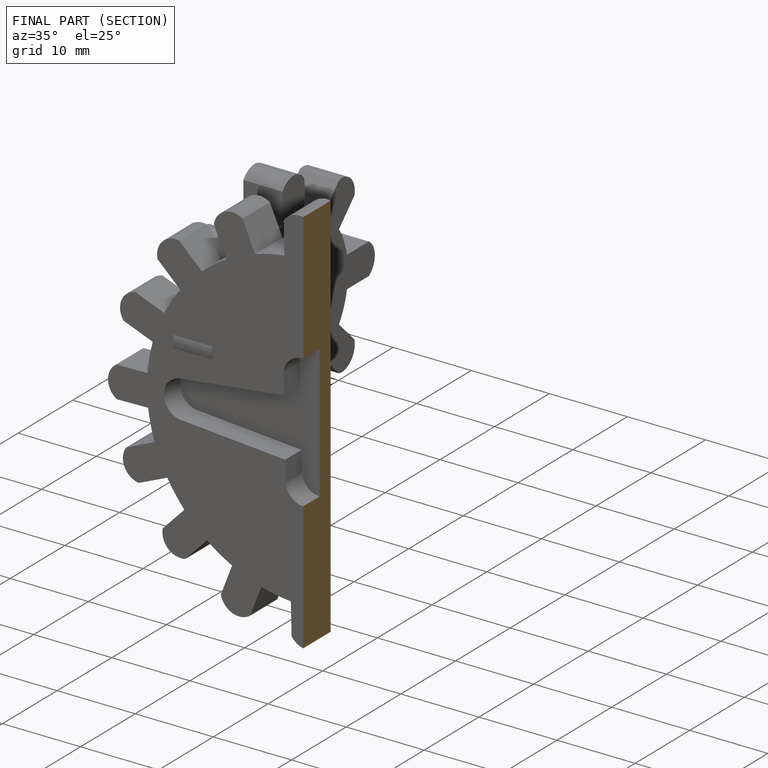
[diagram: finished part — half-section view (interior)]
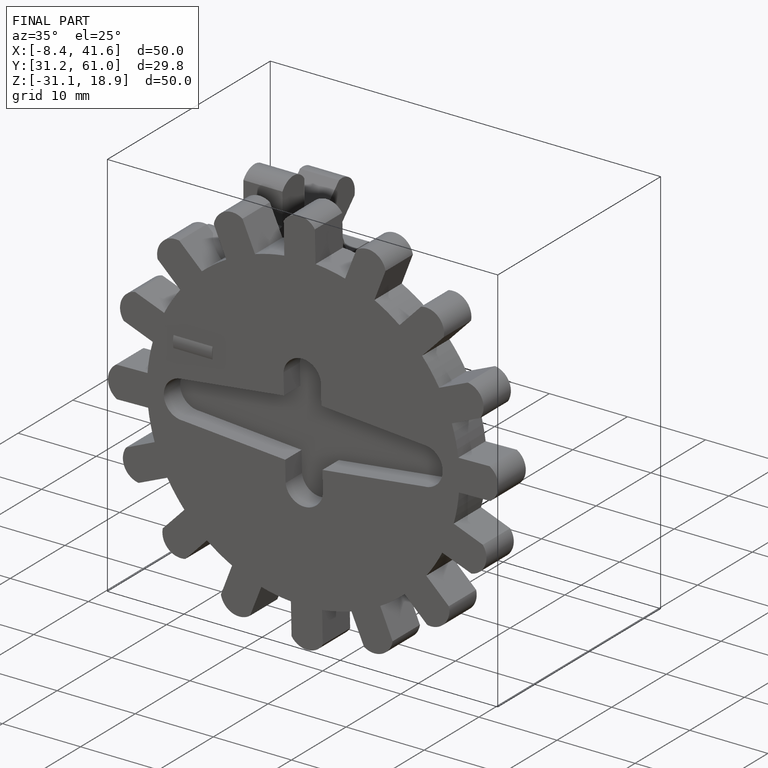
[diagram: finished part — iso view with bounding-box wireframe]
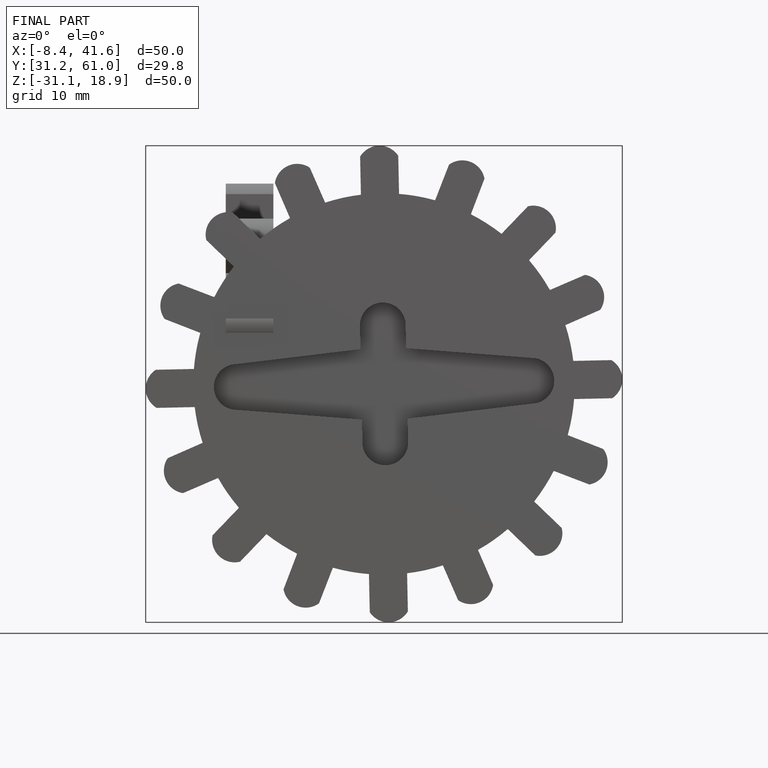
[diagram: finished part — front view with bounding-box wireframe]
